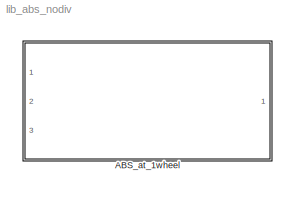
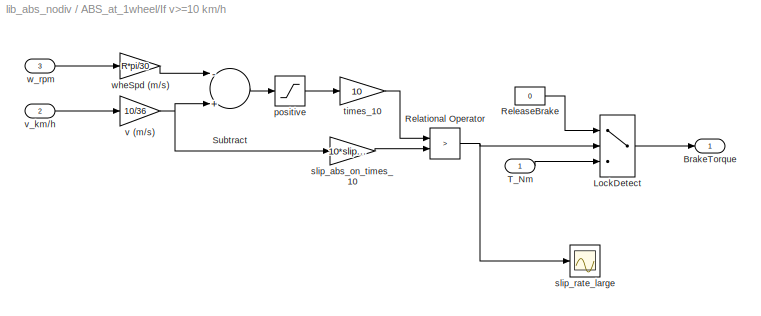
MODEL lib_abs_nodiv
KIND library
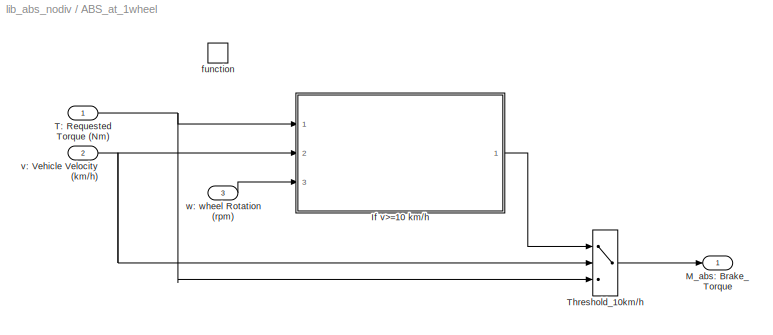
BLOCK [SubSystem] ABS_at_1wheel
  FunctionWithSeparateData = off
  MaskHideContents = off
  MinAlgLoopOccurrences = off
  Opaque = off
  Ports = [3, 1, 0, 1]
  PropExecContextOutsideSubsystem = off
  RTWSystemCode = Auto
  RequestExecContextInheritance = off
  SID = 1
  TreatAsAtomicUnit = on
BLOCK [SubSystem] ABS_at_1wheel/If v>=10 km//h
  FunctionWithSeparateData = off
  MaskHideContents = off
  MinAlgLoopOccurrences = off
  Opaque = off
  Ports = [3, 1]
  PropExecContextOutsideSubsystem = off
  RTWSystemCode = Auto
  RequestExecContextInheritance = off
  SID = 6
  TreatAsAtomicUnit = on
BLOCK [Outport] ABS_at_1wheel/If v>=10 km//h/BrakeTorque
  IconDisplay = Port number
  SID = 1:25
BLOCK [Switch] ABS_at_1wheel/If v>=10 km//h/LockDetect
  Criteria = u2 > Threshold
  InputSameDT = off
  SID = 1:12
  SaturateOnIntegerOverflow = off
BLOCK [RelationalOperator] ABS_at_1wheel/If v>=10 km//h/Relational Operator
  InputSameDT = off
  Operator = >
  OutDataTypeStr = boolean
  Ports = [2, 1]
  SID = 1:34
BLOCK [Constant] ABS_at_1wheel/If v>=10 km//h/ReleaseBrake
  OutDataTypeStr = uint8
  SID = 1:14
  Value = 0
BLOCK [Sum] ABS_at_1wheel/If v>=10 km//h/Subtract
  InputSameDT = off
  Inputs = -+
  OutDataTypeStr = Inherit: Inherit via internal rule
  Ports = [2, 1]
  SID = 1:36
  SaturateOnIntegerOverflow = off
BLOCK [Inport] ABS_at_1wheel/If v>=10 km//h/T_Nm
  IconDisplay = Port number
  SID = 1:7
BLOCK [Saturate] ABS_at_1wheel/If v>=10 km//h/positive
  InputPortMap = u0
  LowerLimit = 0
  Ports = [1, 1]
  SID = 1:42
  UpperLimit = inf
BLOCK [Gain] ABS_at_1wheel/If v>=10 km//h/slip_abs_on_times_10
  Gain = 10*slip_abs_on
  OutDataTypeStr = Inherit: Inherit via internal rule
  ParamDataTypeStr = Inherit: Inherit via internal rule
  SID = 1:41
  SaturateOnIntegerOverflow = off
BLOCK [Scope] ABS_at_1wheel/If v>=10 km//h/slip_rate_large
  DataFormat = StructureWithTime
  Floating = off
  NumInputPorts = 1
  Ports = [1]
  SID = 1:69
  SampleTime = 0
  SaveName = ScopeData7
BLOCK [Gain] ABS_at_1wheel/If v>=10 km//h/times_10
  Gain = 10
  OutDataTypeStr = Inherit: Inherit via internal rule
  ParamDataTypeStr = Inherit: Inherit via internal rule
  SID = 1:35
  SaturateOnIntegerOverflow = off
BLOCK [Gain] ABS_at_1wheel/If v>=10 km//h/v (m//s)
  Gain = 10/36
  OutDataTypeStr = Inherit: Inherit via internal rule
  OutMax = 100
  OutMin = 0
  ParamDataTypeStr = Inherit: Inherit via internal rule
  SID = 1:38
  SaturateOnIntegerOverflow = off
BLOCK [Inport] ABS_at_1wheel/If v>=10 km//h/v_km//h
  IconDisplay = Port number
  Port = 2
  SID = 1:37
BLOCK [Inport] ABS_at_1wheel/If v>=10 km//h/w_rpm
  IconDisplay = Port number
  Port = 3
  SID = 1:39
BLOCK [Gain] ABS_at_1wheel/If v>=10 km//h/wheSpd (m//s)
  Gain = R*pi/30
  OutDataTypeStr = Inherit: Inherit via internal rule
  OutMax = 100
  OutMin = 0
  ParamDataTypeStr = Inherit: Inherit via internal rule
  SID = 1:40
  SaturateOnIntegerOverflow = off
BLOCK [Outport] ABS_at_1wheel/M_abs: Brake_Torque
  IconDisplay = Port number
  SID = 27
BLOCK [Inport] ABS_at_1wheel/T: Requested Torque (Nm)
  IconDisplay = Port number
  SID = 2
BLOCK [Switch] ABS_at_1wheel/Threshold_10km//h
  InputSameDT = off
  SID = 26
  SaturateOnIntegerOverflow = off
  Threshold = 10
BLOCK [TriggerPort] ABS_at_1wheel/function
  Ports = []
  SID = 5
  StatesWhenEnabling = held
  TriggerType = function-call
BLOCK [Inport] ABS_at_1wheel/v: Vehicle Velocity (km//h)
  IconDisplay = Port number
  Port = 2
  SID = 3
BLOCK [Inport] ABS_at_1wheel/w: wheel Rotation (rpm)
  IconDisplay = Port number
  Port = 3
  SID = 4
LINE ABS_at_1wheel/If v>=10 km//h/LockDetect:1 -> ABS_at_1wheel/If v>=10 km//h/BrakeTorque:1
NET ABS_at_1wheel/If v>=10 km//h/Relational Operator:1 -> ABS_at_1wheel/If v>=10 km//h/LockDetect:2, ABS_at_1wheel/If v>=10 km//h/slip_rate_large:1
LINE ABS_at_1wheel/If v>=10 km//h/ReleaseBrake:1 -> ABS_at_1wheel/If v>=10 km//h/LockDetect:1
LINE ABS_at_1wheel/If v>=10 km//h/Subtract:1 -> ABS_at_1wheel/If v>=10 km//h/positive:1
LINE ABS_at_1wheel/If v>=10 km//h/T_Nm:1 -> ABS_at_1wheel/If v>=10 km//h/LockDetect:3
LINE ABS_at_1wheel/If v>=10 km//h/positive:1 -> ABS_at_1wheel/If v>=10 km//h/times_10:1
LINE ABS_at_1wheel/If v>=10 km//h/slip_abs_on_times_10:1 -> ABS_at_1wheel/If v>=10 km//h/Relational Operator:2
LINE ABS_at_1wheel/If v>=10 km//h/times_10:1 -> ABS_at_1wheel/If v>=10 km//h/Relational Operator:1
NET ABS_at_1wheel/If v>=10 km//h/v (m//s):1 -> ABS_at_1wheel/If v>=10 km//h/Subtract:2, ABS_at_1wheel/If v>=10 km//h/slip_abs_on_times_10:1
LINE ABS_at_1wheel/If v>=10 km//h/v_km//h:1 -> ABS_at_1wheel/If v>=10 km//h/v (m//s):1
LINE ABS_at_1wheel/If v>=10 km//h/w_rpm:1 -> ABS_at_1wheel/If v>=10 km//h/wheSpd (m//s):1
LINE ABS_at_1wheel/If v>=10 km//h/wheSpd (m//s):1 -> ABS_at_1wheel/If v>=10 km//h/Subtract:1
LINE ABS_at_1wheel/If v>=10 km//h:1 -> ABS_at_1wheel/Threshold_10km//h:1
NET ABS_at_1wheel/T: Requested Torque (Nm):1 -> ABS_at_1wheel/If v>=10 km//h:1, ABS_at_1wheel/Threshold_10km//h:3
LINE ABS_at_1wheel/Threshold_10km//h:1 -> ABS_at_1wheel/M_abs: Brake_Torque:1
NET ABS_at_1wheel/v: Vehicle Velocity (km//h):1 -> ABS_at_1wheel/If v>=10 km//h:2, ABS_at_1wheel/Threshold_10km//h:2
LINE ABS_at_1wheel/w: wheel Rotation (rpm):1 -> ABS_at_1wheel/If v>=10 km//h:3
note: NET lines group one-source signal fan-out (src -> all destinations, sorted); 1:1 wires keep LINE
